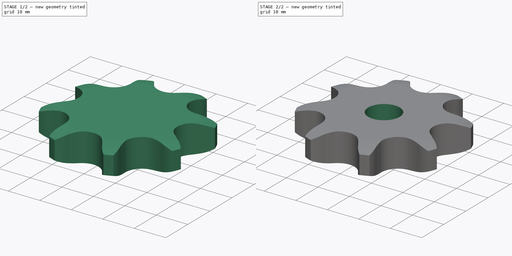
[diagram: build sequence overview — one tinted view per stage of 2, left to right]
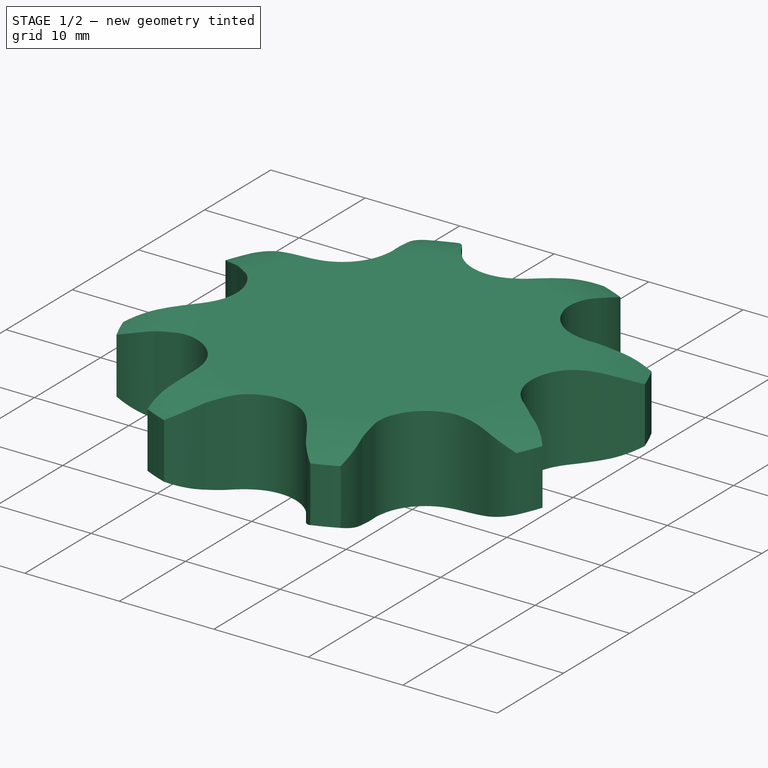
[diagram: stage 1 of 2 — iso view after this stage's code; geometry added in this stage tinted green]
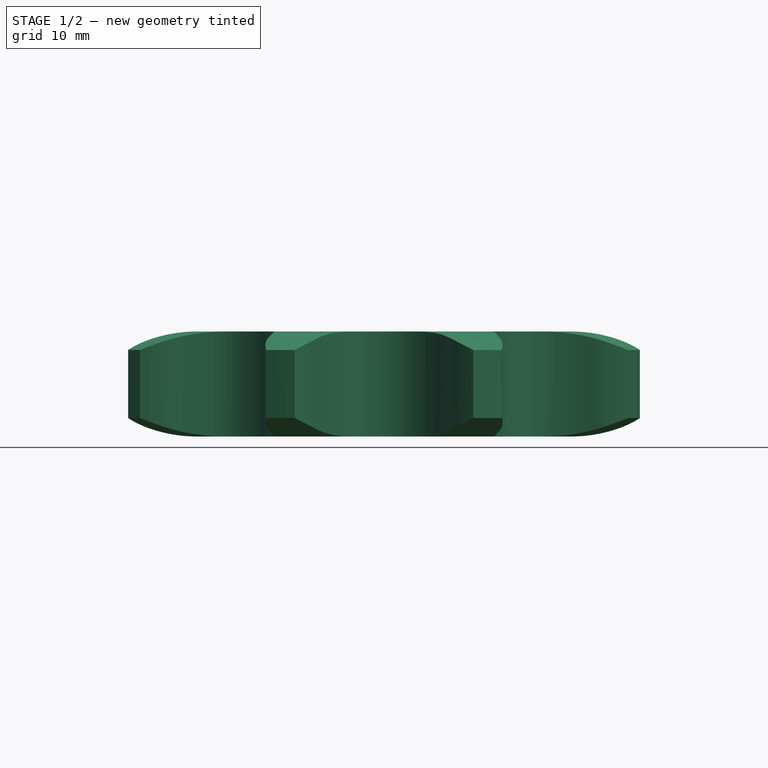
[diagram: stage 1 of 2 — front view after this stage's code; geometry added in this stage tinted green]
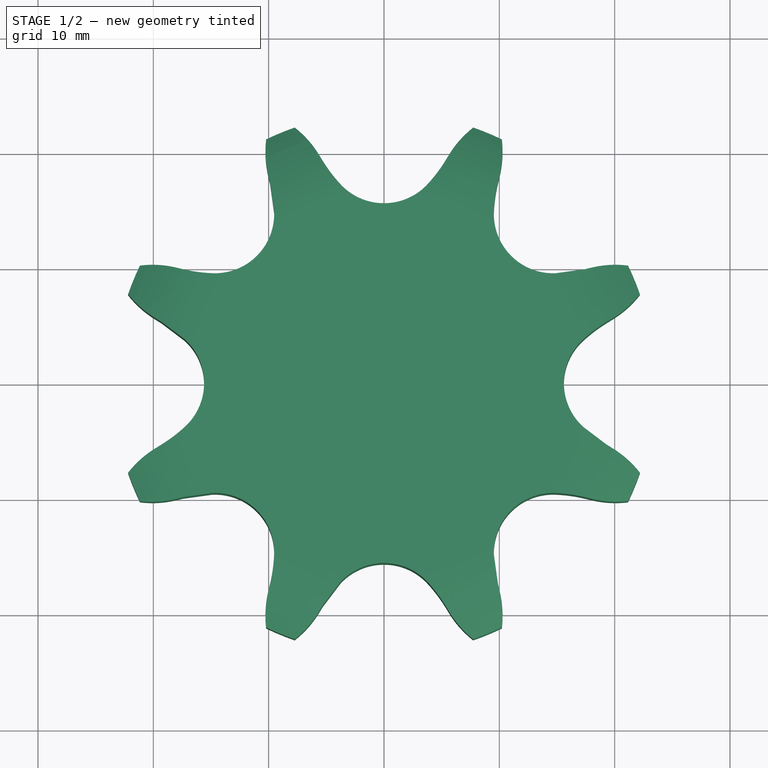
[diagram: stage 1 of 2 — top view after this stage's code; geometry added in this stage tinted green]
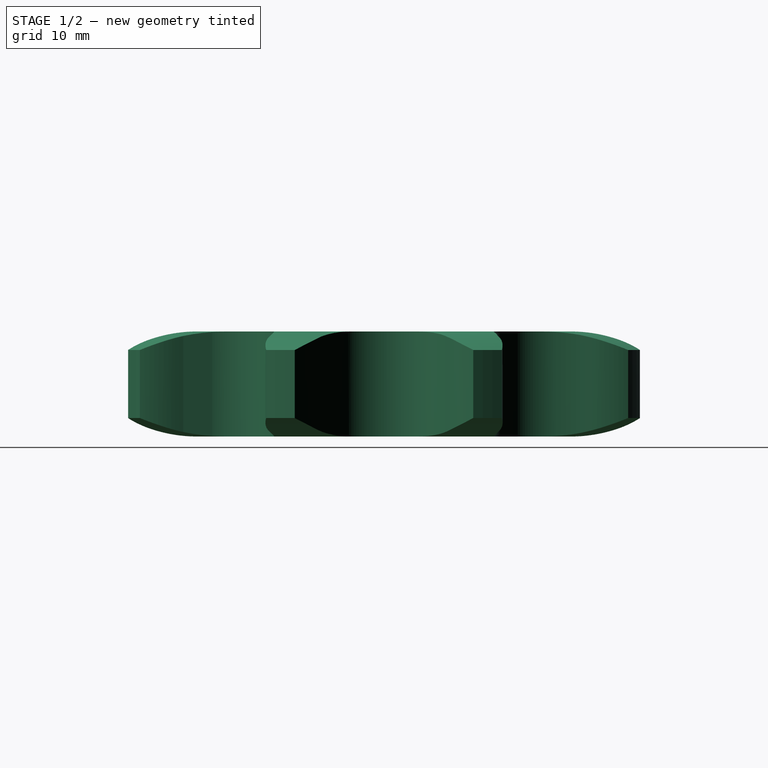
[diagram: stage 1 of 2 — right view after this stage's code; geometry added in this stage tinted green]
FCSTD DOCUMENT  (FreeCAD 0.21R33694 (Git))
Label: Plate Wheel simplex ⅝x⅜
License: Attribution 4.0 International (CC BY 4.0)
LicenseURL: http://creativecommons.org/licenses/by/4.0/
objects: Sketcher::SketchObject×2, Spreadsheet::Sheet×1, Part::Part2DObjectPython×1, PartDesign::Pad×1, PartDesign::Groove×1, PartDesign::Pocket×1, PartDesign::Body×1
note: 10 computed .brp shape members not serialized (recipe doc carries the construction recipe); baked Part::Feature solids carry a one-line shape summary decoded from their .brp

FEATURE [Spreadsheet::Sheet] Spreadsheet  label="Data"
  TeethNumber = 0
  cells = A1='Teeth Number; B1='P (Pitch); C1='Wc (Chain width); D1='Dr (Roller diameter); E1='Tr (Tooth radius); F1='Rw (Radius width); G1='Wt (Tooth width); H1='z (Number of teeth); I1='De (External Diameter); J1='Dp (pitch diameter); K1='D (Hole diameter); L1='H (Total height); A2==hiddenref(.TeethNumber.String); B2(P)==.B3; C2(Wc)==.C3; D2(Dr)==.D3; E2(Tr)==.E3; F2(Rw)==.F3; G2(Wt)==.G3; H2(z)==.H3; I2(De)==.I3; J2(Dp)==.J3; K2(D)==.K3; L2(H)==.L3; A3='Z 8; B3=15.875; C3=9.65; D3=10.16; E3=16; F3=1.6; G3=9.1; H3=8; I3=47; J3=41.48; K3=10; L3=9.1; A4='Z 9; B4=15.875; C4=9.65; D4=10.16; E4=16; F4=1.6; G4=9.1; H4=9; I4=52.6; J4=46.42; K4=10; L4=9.1; A5='Z 10; B5=15.875; C5=9.65; D5=10.16; E5=16; F5=1.6; G5=9.1; H5=10; I5=57.5; J5=51.37; K5=10; L5=9.1; A6='Z 11; B6=15.875; C6=9.65; D6=10.16; E6=16; F6=1.6; G6=9.1; H6=11; I6=63; J6=56.34; K6=10; L6=9.1; A7='Z 12; B7=15.875; C7=9.65; D7=10.16; E7=16; F7=1.6; G7=9.1; H7=12; I7=68; J7=61.34; K7=10; L7=9.1; A8='Z 13; B8=15.875; C8=9.65; D8=10.16; E8=16; F8=1.6; G8=9.1; H8=13; I8=73; J8=66.32; K8=10; L8=9.1; A9='Z 14; B9=15.875; C9=9.65; D9=10.16; E9=16; F9=1.6; G9=9.1; H9=14; I9=78; J9=71.34; K9=10; L9=9.1; A10='Z 15; B10=15.875; C10=9.65; D10=10.16; E10=16; F10=1.6; G10=9.1; H10=15; I10=83; J10=76.36; K10=10; L10=9.1; A11='Z 16; B11=15.875; C11=9.65; D11=10.16; E11=16; F11=1.6; G11=9.1; H11=16; I11=88; J11=81.37; K11=12; L11=9.1; A12='Z 17; B12=15.875; C12=9.65; D12=10.16; E12=16; F12=1.6; G12=9.1; H12=17; I12=93; J12=86.39; K12=12; L12=9.1; A13='Z 18; B13=15.875; C13=9.65; D13=10.16; E13=16; F13=1.6; G13=9.1; H13=18; I13=98.3; J13=91.42; K13=12; L13=9.1; A14='Z 19; B14=15.875; C14=9.65; D14=10.16; E14=16; F14=1.6; G14=9.1; H14=19; I14=103.3; J14=96.45; K14=12; L14=9.1; A15='Z 20; B15=15.875; C15=9.65; D15=10.16; E15=16; F15=1.6; G15=9.1; H15=20; I15=108.4; J15=101.49; K15=12; L15=9.1; A16='Z 21; B16=15.875; C16=9.65; D16=10.16; E16=16; F16=1.6; G16=9.1; H16=21; I16=113.4; J16=106.52; K16=12; L16=9.1; A17='Z 22; B17=15.875; C17=9.65; D17=10.16; E17=16; F17=1.6; G17=9.1; H17=22; +100 more cells
  expr: .TeethNumber.Enum = cells[<<A3:|>>]
  expr: .cells.Bind.B2.ZZ2 = tuple(.cells; <<B>> + str(hiddenref(TeethNumber) + 3); <<ZZ>> + str(hiddenref(TeethNumber) + 3))
FEATURE [Sketcher::SketchObject] Sketch  label="Radius"
  FullyConstrained = true
  MapMode = 5
  Placement = pos=(0,0,0) rot=(1,0,0;1.5708rad)
  Support = -> [XZ_Plane]
  expr: .Constraints.Re = <<Data>>.De / 2
  expr: .Constraints.Rw = <<Data>>.Rw
  expr: .Constraints.Tr = <<Data>>.Tr
  expr: .Constraints.Wt = <<Data>>.Wt
  sketch-geometry (10):
    g0: LineSegment StartX=16.5258 StartY=0 StartZ=0 EndX=23.5 EndY=0 EndZ=0
    g1: LineSegment StartX=23.5 StartY=0 StartZ=0 EndX=23.5 EndY=1.6 EndZ=0
    g2: ArcOfCircle CenterX=16.5258 CenterY=16 CenterZ=0 NormalX=0 NormalY=0 NormalZ=1 AngleXU=0 Radius=16 StartAngle=4.71239 EndAngle=5.16342
    g3: LineSegment StartX=23.5 StartY=1.6 StartZ=0 EndX=23.5 EndY=7.5 EndZ=0
    g4: LineSegment StartX=16.5258 StartY=9.1 StartZ=0 EndX=23.5 EndY=9.1 EndZ=0
    g5: LineSegment StartX=23.5 StartY=9.1 StartZ=0 EndX=23.5 EndY=7.5 EndZ=0
    g6: ArcOfCircle CenterX=16.5258 CenterY=-6.9 CenterZ=0 NormalX=0 NormalY=0 NormalZ=1 AngleXU=0 Radius=16 StartAngle=1.11977 EndAngle=1.5708
    g7: LineSegment StartX=23.5 StartY=9.1 StartZ=0 EndX=30.4742 EndY=9.1 EndZ=0
    g8: LineSegment StartX=30.4742 StartY=9.1 StartZ=0 EndX=30.4742 EndY=0 EndZ=0
    g9: LineSegment StartX=30.4742 StartY=0 StartZ=0 EndX=23.5 EndY=0 EndZ=0
  constraints (28):
    c: PointOnObject(g0,g-1)
    c: Horizontal(g0)
    c: Coincident(g0,g1)
    c: Vertical(g1)
    c: Tangent(g2,g0) = -1.5708
    c: Coincident(g2,g1)
    c: Coincident(g3,g1)
    c: Vertical(g3)
    c: Horizontal(g4)
    c: Coincident(g4,g5)
    c: Vertical(g5)
    c: Coincident(g6,g5)
    c: Tangent(g6,g4) = 1.5708
    c: Coincident(g5,g3)
    c: Equal(g2,g6)
    c: Equal(g5,g1)
    c: Radius(g2) = 16  'Tr'
    c: DistanceY(g0,g4) = 9.1  'Wt'
    c: DistanceX(g0) = 23.5  'Re'
    c: DistanceY(g1,g1) = 1.6  'Rw'
    c: Coincident(g4,g7)
    c: Coincident(g7,g8)
    c: Vertical(g8)
    c: Coincident(g8,g9)
    c: Coincident(g9,g0)
    c: Horizontal(g7)
    c: Horizontal(g9)
    c: Equal(g0,g9)
FEATURE [Part::Part2DObjectPython] Sprocket  label="Teeth sketch"  # Draft 2D object (typed FeaturePython)
  ANSISize = 50
  NumberOfTeeth = 8
  Pitch = 15.875
  RollerDiameter = 10.16
  expr: NumberOfTeeth = <<Data>>.z
  expr: Pitch = <<Data>>.P
  expr: RollerDiameter = <<Data>>.Dr
FEATURE [PartDesign::Pad] Pad  label="Teeth"
  Direction = (0,0,1)
  Length = 9.1
  Length2 = 100
  Profile = -> Sprocket
  Type = 0
  expr: Length = <<Data>>.Wt
FEATURE [PartDesign::Groove] Groove  label="Teeth Radius"
  Angle = 360
  Axis = (-3e-16,3e-16,1)
  Base = (0,0,0)
  BaseFeature = -> Pad
  Profile = -> Sketch
  ReferenceAxis = -> Z_Axis
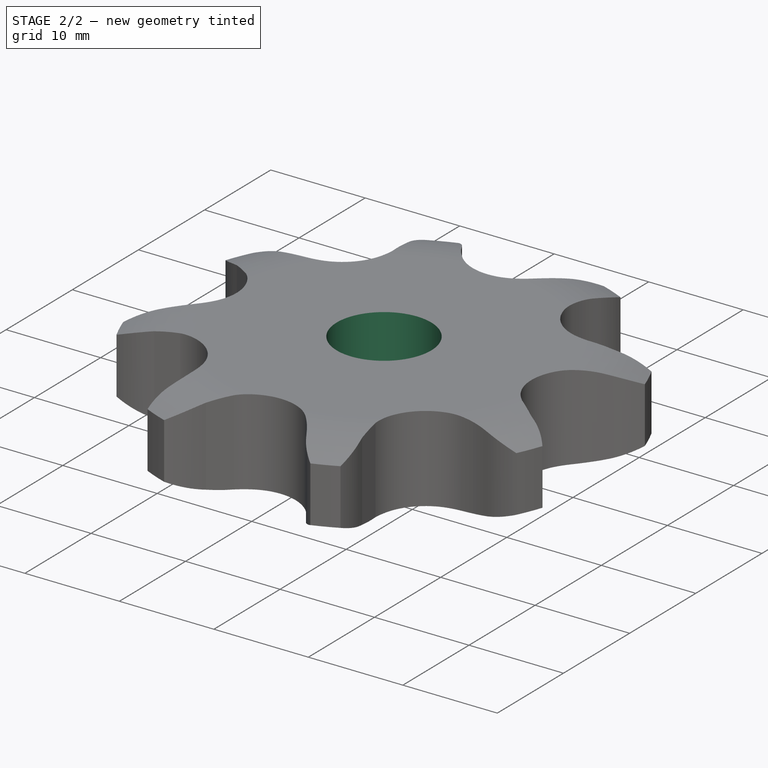
[diagram: stage 2 of 2 — iso view after this stage's code; geometry added in this stage tinted green]
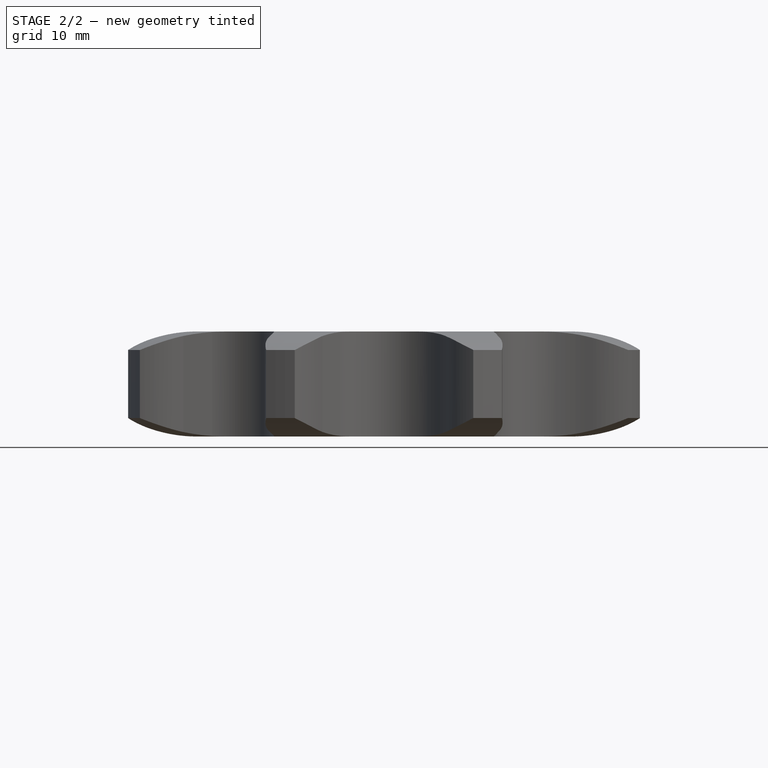
[diagram: stage 2 of 2 — front view after this stage's code; geometry added in this stage tinted green]
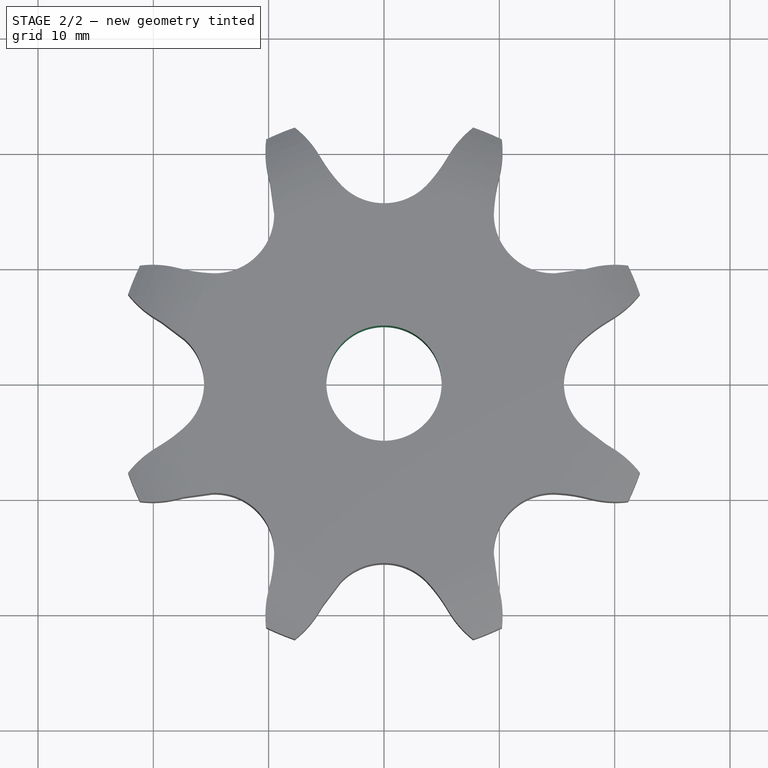
[diagram: stage 2 of 2 — top view after this stage's code; geometry added in this stage tinted green]
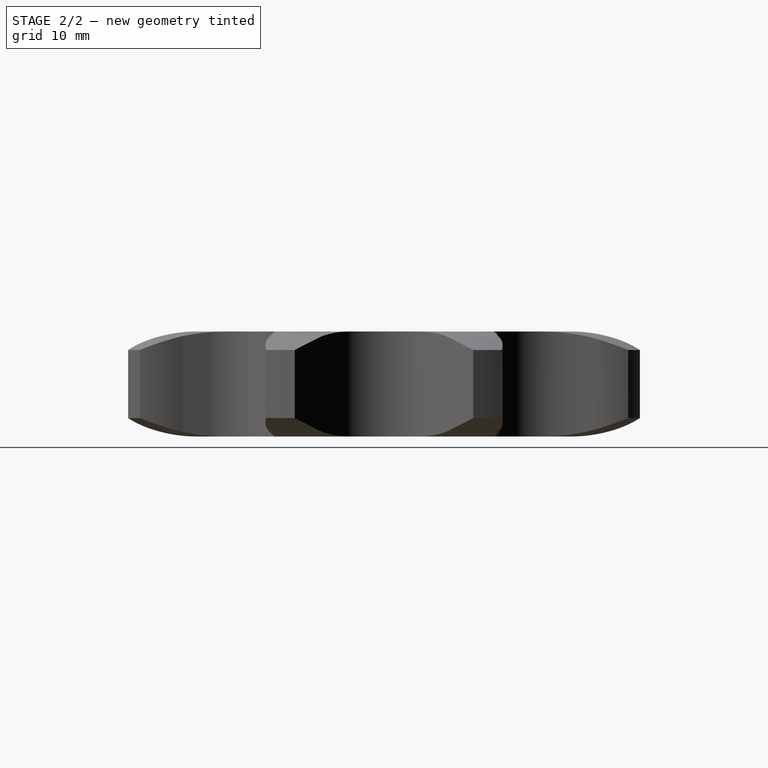
[diagram: stage 2 of 2 — right view after this stage's code; geometry added in this stage tinted green]
FEATURE [Sketcher::SketchObject] Sketch001  label="Hole Sketch"
  FullyConstrained = true
  MapMode = 5
  Support = -> [XY_Plane]
  expr: .Constraints.D = <<Data>>.D
  sketch-geometry (1):
    g0: Circle CenterX=0 CenterY=0 CenterZ=0 NormalX=0 NormalY=0 NormalZ=1 AngleXU=0 Radius=5
  constraints (2):
    c: Coincident(g0,g-1)
    c: Diameter(g0) = 10  'D'
FEATURE [PartDesign::Pocket] Pocket  label="Hole"
  BaseFeature = -> Groove
  Direction = (0,0,-1)
  Length = 5
  Length2 = 100
  Midplane = true
  Profile = -> Sketch001
  Type = 1
FEATURE [PartDesign::Body] Body  label="Plate Wheel simplex ⅝x⅜"
  Group = -> [Sprocket,Pad,Sketch,Groove,Sketch001,Pocket]
  Origin = -> Origin
  Tip = -> Pocket
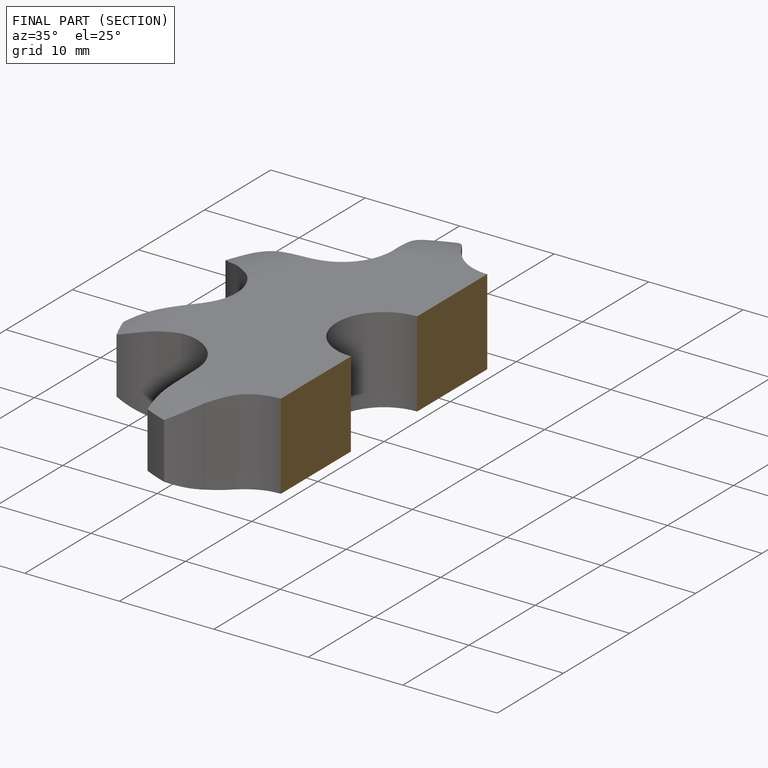
[diagram: finished part — half-section view (interior)]
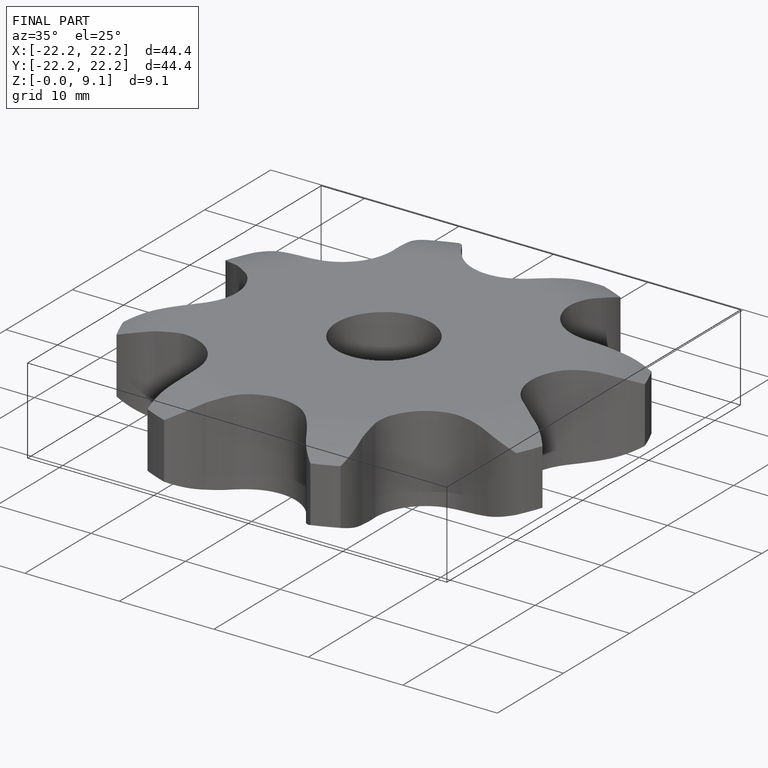
[diagram: finished part — iso view with bounding-box wireframe]
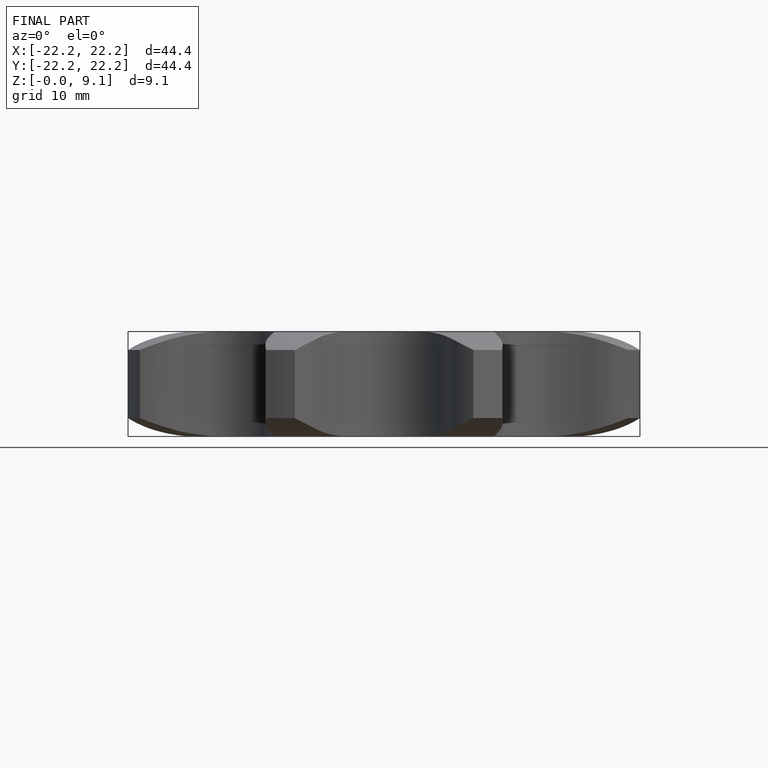
[diagram: finished part — front view with bounding-box wireframe]
